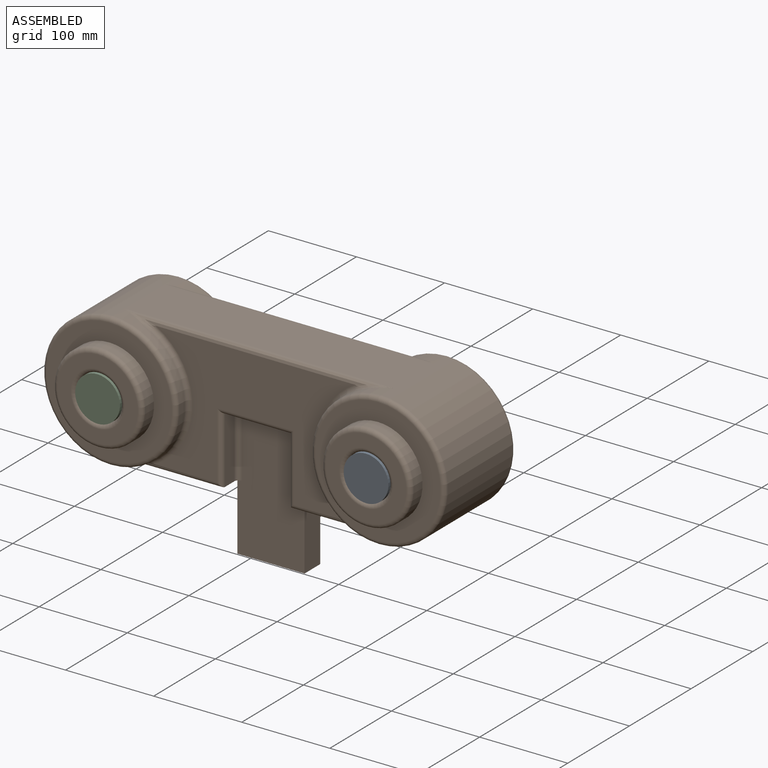
[diagram: assembled view]
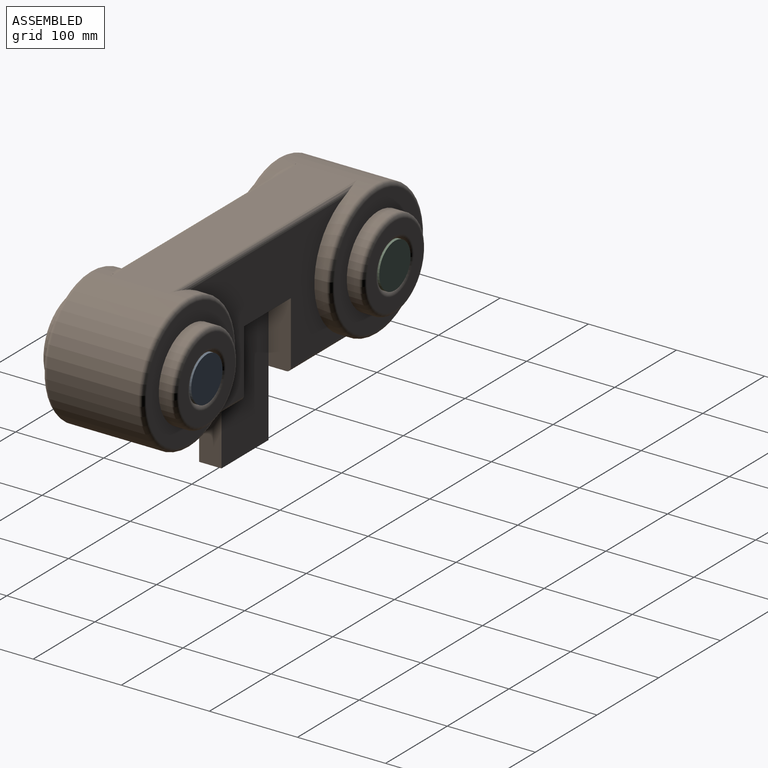
[diagram: assembled view, second angle]
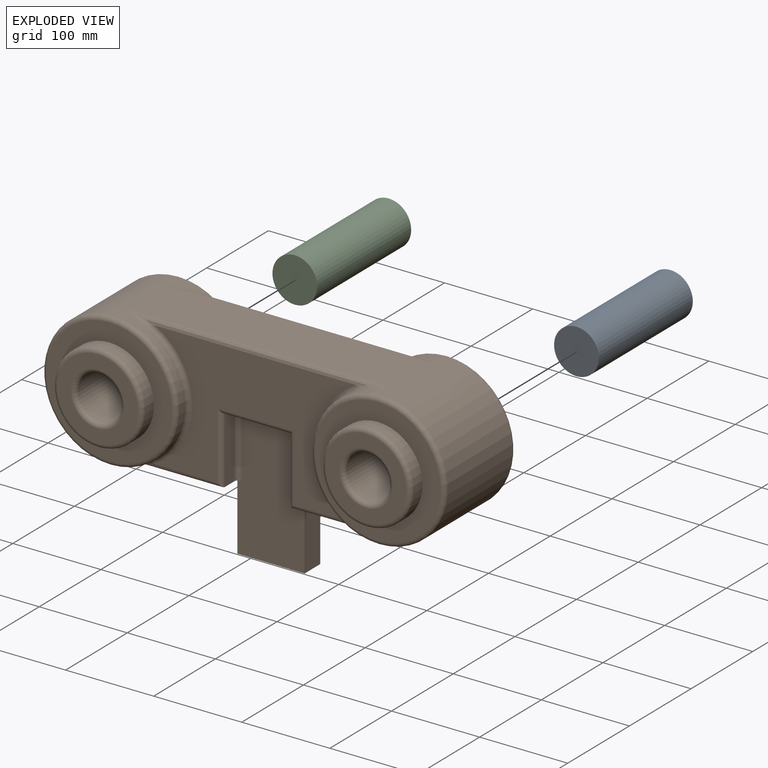
[diagram: exploded view]
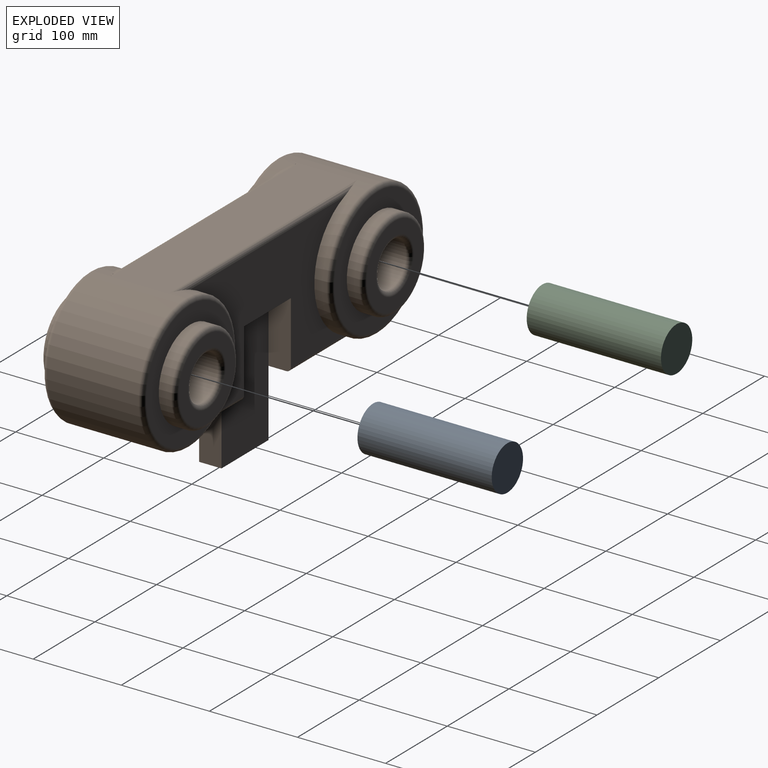
[diagram: exploded view, second angle]
ASSEMBLY  parts=3 mates=2
PART A: 3 faces, bbox 50.8x152.4x50.8 mm
  f0: cylinder r=25.4mm len=152.4mm, axis (0,1,0), area 24322mm2, adj f1,f2
  f1: plane 50.8x50.8mm, normal (0,-1,0), area 2026.8mm2, adj f0
  f2: plane 50.8x50.8mm, normal (0,1,0), area 2026.8mm2, adj f0
PART B: 62 faces, bbox 469.8x152.4x234.9 mm
  f0: plane 76.2x25.4mm, normal (1,0,0), area 1929.9mm2, adj f1,f8,f10,f31,f49
  f1: plane 76.2x25.4mm, normal (0,0,-1), area 1935.5mm2, adj f0,f2,f10,f31
  f2: plane 76.2x25.4mm, normal (-1,0,0), area 1929.9mm2, adj f1,f6,f10,f31,f48
  f3: plane 76.2x15.24mm, normal (1,0,0), area 1161.3mm2, adj f4,f8,f32,f57
  f4: plane 76.2x15.24mm, normal (0,0,-1), area 1161.3mm2, adj f3,f5,f33,f55
  f5: plane 76.2x15.24mm, normal (-1,0,0), area 1161.3mm2, adj f4,f6,f34,f53
  f6: plane 119.38x66.04mm, normal (0,0,-1), area 7553.9mm2, adj f2,f5,f11,f28,f30,f34,f48,f51
  f7: plane 304.8x66.04mm, normal (0,0,1), area 20129mm2, adj f11,f14,f47,f56
  f8: plane 119.38x66.04mm, normal (0,0,-1), area 7553.9mm2, adj f0,f3,f14,f27,f30,f32,f49,f59
  f9: plane 226.1x142.24mm, normal (0,-1,0), area 17099.6mm2, adj f51,f52,f53,f55,f56,f57,f59,f60
  f10: plane 250.09x142.24mm, normal (0,1,0), area 20067.1mm2, adj f0,f1,f2,f11,f14,f47,f48,f49
  f11: cylinder r=76.2mm len=152.4mm, axis (0,1,0), area 30816.5mm2, adj f6,f7,f10,f43,f44,f47,f48,f50
  f12: plane 142.24x142.24mm, normal (0,-1,0), area 7783mm2, adj f18,f44
  f13: plane 142.24x142.24mm, normal (0,1,0), area 7783mm2, adj f17,f43
  f14: cylinder r=76.2mm len=152.4mm, axis (0,1,0), area 30816.5mm2, adj f7,f8,f10,f45,f46,f47,f49,f58
  f15: plane 142.24x142.24mm, normal (0,-1,0), area 7783mm2, adj f24,f46
  f16: plane 142.24x142.24mm, normal (0,1,0), area 7783mm2, adj f22,f45
  f17: cylinder r=50.8mm len=101.6mm, axis (0,1,0), area 4459mm2, adj f13,f36
  f18: cylinder r=50.8mm len=101.6mm, axis (0,1,0), area 4459mm2, adj f12,f38
  f19: cylinder r=25.4mm len=142.24mm, axis (0,1,0), area 22700.5mm2, adj f35,f37
  f20: plane 91.44x91.44mm, normal (0,-1,0), area 3648.3mm2, adj f37,f38
  f21: plane 91.44x91.44mm, normal (0,1,0), area 3648.3mm2, adj f35,f36
  f22: cylinder r=50.8mm len=101.6mm, axis (0,1,0), area 4459mm2, adj f16,f40
  f23: cylinder r=25.4mm len=142.24mm, axis (0,1,0), area 22700.5mm2, adj f39,f41
  f24: cylinder r=50.8mm len=101.6mm, axis (0,1,0), area 4459mm2, adj f15,f42
  f25: plane 91.44x91.44mm, normal (0,-1,0), area 3648.3mm2, adj f41,f42
  f26: plane 91.44x91.44mm, normal (0,1,0), area 3648.3mm2, adj f39,f40
  f27: plane 76.2x25.4mm, normal (-1,0,0), area 1935.5mm2, adj f8,f29,f30,f31
  f28: plane 76.2x25.4mm, normal (1,0,0), area 1935.5mm2, adj f6,f29,f30,f31
  f29: plane 76.2x25.4mm, normal (0,0,-1), area 1935.5mm2, adj f27,f28,f30,f31
  f30: plane 147.32x76.2mm, normal (0,-1,0), area 10503.2mm2, adj f6,f8,f27,f28,f29,f32,f33,f34
  f31: plane 152.4x76.2mm, normal (0,1,0), area 11612.9mm2, adj f0,f1,f2,f27,f28,f29
  f32: cylinder r=5.08mm len=76.2mm, axis (0,0,1), area 593.3mm2, adj f3,f8,f30,f33
  f33: cylinder r=5.08mm len=76.2mm, axis (1,0,0), area 578.6mm2, adj f4,f30,f32,f34
  f34: cylinder r=5.08mm len=76.2mm, axis (0,0,-1), area 593.3mm2, adj f5,f6,f30,f33
  f35: torus R=30.48mm, axis (0,-1,0), area 1366mm2, adj f19,f21
  f36: torus R=45.72mm, axis (0,-1,0), area 2454.4mm2, adj f17,f21
  f37: torus R=30.48mm, axis (0,-1,0), area 1366mm2, adj f19,f20
  f38: torus R=45.72mm, axis (0,-1,0), area 2454.4mm2, adj f18,f20
  f39: torus R=30.48mm, axis (0,-1,0), area 1366mm2, adj f23,f26
  f40: torus R=45.72mm, axis (0,-1,0), area 2454.4mm2, adj f22,f26
  f41: torus R=30.48mm, axis (0,-1,0), area 1366mm2, adj f23,f25
  f42: torus R=45.72mm, axis (0,-1,0), area 2454.4mm2, adj f24,f25
  f43: torus R=71.12mm, axis (0,-1,0), area 3727.9mm2, adj f11,f13
  f44: torus R=71.12mm, axis (0,-1,0), area 3727.9mm2, adj f11,f12
  f45: torus R=71.12mm, axis (0,-1,0), area 3727.9mm2, adj f14,f16
  f46: torus R=71.12mm, axis (0,-1,0), area 3727.9mm2, adj f14,f15
  f47: cylinder r=5.08mm len=304.8mm, axis (-1,0,0), area 2200.1mm2, adj f7,f10,f11,f14
  f48: cylinder r=5.08mm len=114.3mm, axis (1,0,0), area 796mm2, adj f2,f6,f10,f11
  f49: cylinder r=5.08mm len=114.3mm, axis (1,0,0), area 796mm2, adj f0,f8,f10,f14
  f50: bspline ~40.87x10.33mm, area 151.4mm2, adj f11,f51,f52
  f51: cylinder r=5.08mm len=114.3mm, axis (-1,0,0), area 729.2mm2, adj f6,f9,f50,f53
  f52: torus R=81.28mm, axis (0,-1,0), area 1327.1mm2, adj f9,f11,f50,f54
  f53: cylinder r=5.08mm len=81.28mm, axis (0,0,1), area 608mm2, adj f5,f9,f51,f55
  f54: bspline ~40.87x10.33mm, area 151.4mm2, adj f11,f52,f56
  f55: cylinder r=5.08mm len=86.36mm, axis (-1,0,0), area 637.5mm2, adj f4,f9,f53,f57
  f56: cylinder r=5.08mm len=304.8mm, axis (1,0,0), area 2095.8mm2, adj f7,f9,f54,f58
  f57: cylinder r=5.08mm len=81.28mm, axis (0,0,-1), area 608mm2, adj f3,f9,f55,f59
  f58: bspline ~40.87x10.33mm, area 151.4mm2, adj f14,f56,f60
  f59: cylinder r=5.08mm len=114.3mm, axis (-1,0,0), area 729.2mm2, adj f8,f9,f57,f61
  f60: torus R=81.28mm, axis (0,-1,0), area 1327.1mm2, adj f9,f14,f58,f61
  f61: bspline ~40.87x10.33mm, area 151.4mm2, adj f14,f59,f60
PART C: 3 faces, bbox 50.8x152.4x50.8 mm
  f0: cylinder r=25.4mm len=152.4mm, axis (0,1,0), area 24322mm2, adj f1,f2
  f1: plane 50.8x50.8mm, normal (0,-1,0), area 2026.8mm2, adj f0
  f2: plane 50.8x50.8mm, normal (0,1,0), area 2026.8mm2, adj f0
PLACE A t=(32,0,-117.35)mm
PLACE B t=(32,0,-117.35)mm
PLACE C t=(32,0,-117.35)mm
MATE fastened A.f0 <-> B.f11  axis (0,1,0) through (184.4,-76.2,-117.35)mm
MATE fastened C.f0 <-> B.f14  axis (0,-1,0) through (-120.4,-76.2,-117.35)mm
